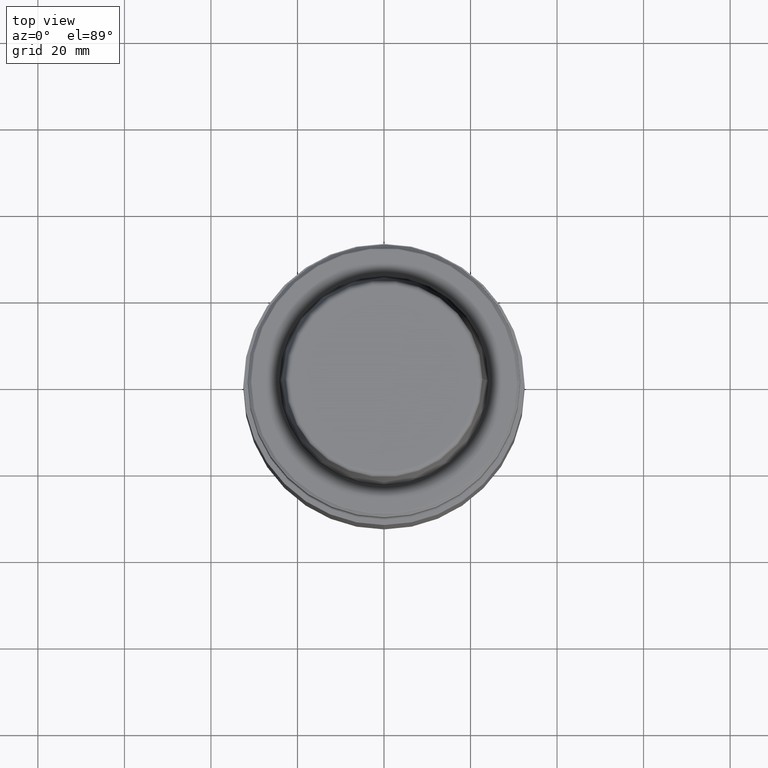
[diagram: clean part render]
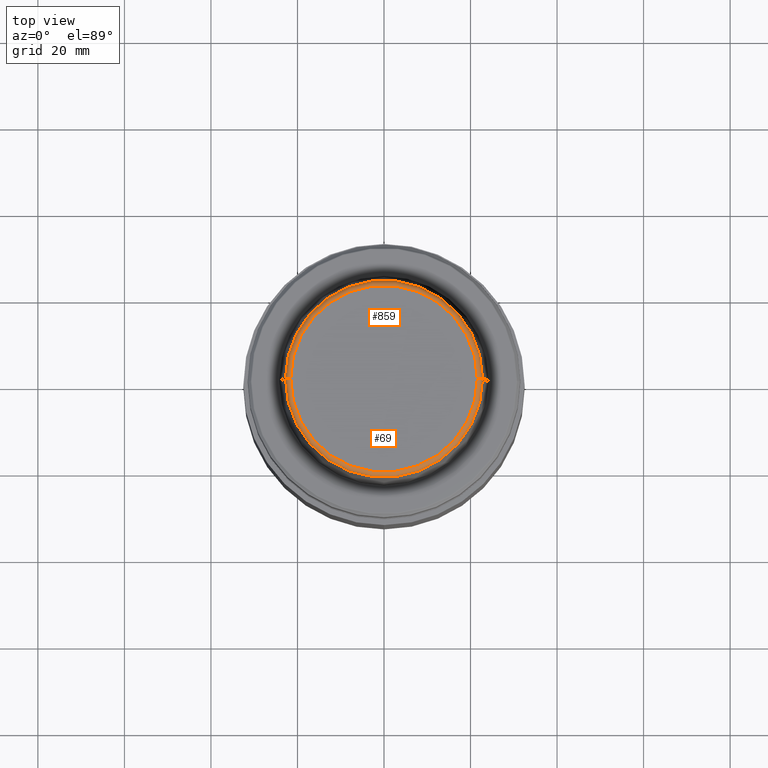
[diagram: same view with one multi-face feature highlighted, each face labeled with its STEP entity id]
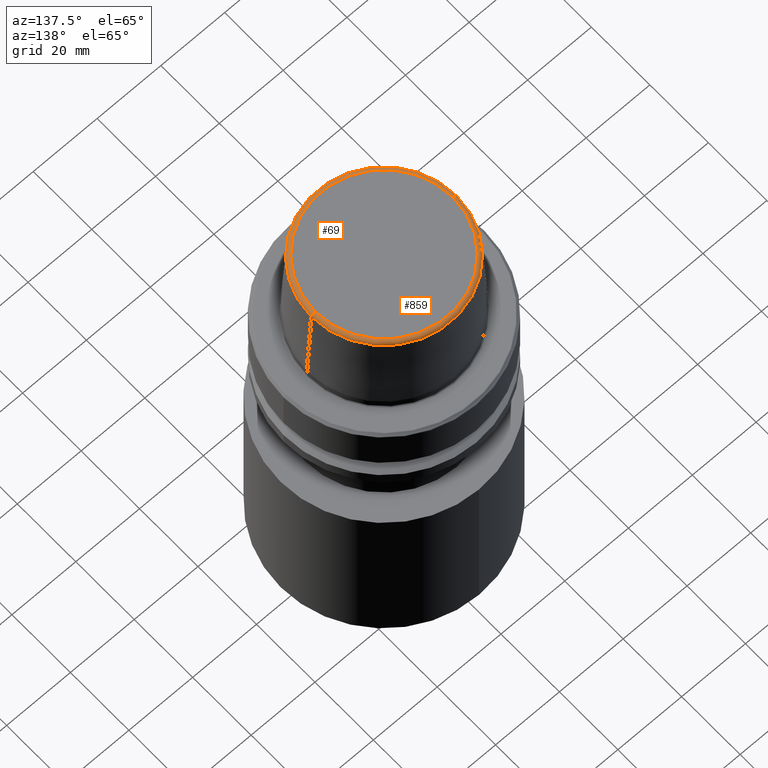
[diagram: same view with one multi-face feature highlighted, each face labeled with its STEP entity id]
A machine part, top view. The highlighted faces form ONE feature: a constant-radius fillet chain: 2 tangent blend faces with common blend radius 1.2 mm. The faces share edges in the B-rep.
A second angle (auxiliary view) of the same feature is appended — it is thin or edge-on in the first view.
Their STEP definitions:
[1] entity #859 (Torus):
#57 = EDGE_CURVE ( 'NONE', #240, #751, #1033, .T. ) ;
#62 = CIRCLE ( 'NONE', #756, 21.58108272732117100 ) ;
#81 = AXIS2_PLACEMENT_3D ( 'NONE', #918, #346, #1018 ) ;
#84 = CARTESIAN_POINT ( 'NONE',  ( -21.58108272732117100, 2.716307157494421400E-015, 31.89999999999999900 ) ) ;
#168 = ORIENTED_EDGE ( 'NONE', *, *, #1279, .T. ) ;
#192 = DIRECTION ( 'NONE',  ( -0.0000000000000000000, -0.0000000000000000000, 1.000000000000000000 ) ) ;
#230 = AXIS2_PLACEMENT_3D ( 'NONE', #305, #247, #365 ) ;
#240 = VERTEX_POINT ( 'NONE', #621 ) ;
#247 = DIRECTION ( 'NONE',  ( 0.0000000000000000000, -1.000000000000000000, 0.0000000000000000000 ) ) ;
#305 = CARTESIAN_POINT ( 'NONE',  ( 21.58108272732117100, 0.0000000000000000000, 30.69999999999999200 ) ) ;
#337 = VERTEX_POINT ( 'NONE', #692 ) ;
#346 = DIRECTION ( 'NONE',  ( -0.0000000000000000000, -0.0000000000000000000, 1.000000000000000000 ) ) ;
#350 = ORIENTED_EDGE ( 'NONE', *, *, #510, .F. ) ;
#363 = ORIENTED_EDGE ( 'NONE', *, *, #57, .F. ) ;
#365 = DIRECTION ( 'NONE',  ( 0.0000000000000000000, 0.0000000000000000000, -1.000000000000000000 ) ) ;
#424 = DIRECTION ( 'NONE',  ( -0.0000000000000000000, -0.0000000000000000000, 1.000000000000000000 ) ) ;
#430 = CIRCLE ( 'NONE', #81, 22.77957961851797500 ) ;
#473 = CARTESIAN_POINT ( 'NONE',  ( -21.58108272732117100, 2.642920388414810300E-015, 30.69999999999999200 ) ) ;
#489 = AXIS2_PLACEMENT_3D ( 'NONE', #473, #1159, #571 ) ;
#510 = EDGE_CURVE ( 'NONE', #751, #897, #62, .T. ) ;
#571 = DIRECTION ( 'NONE',  ( -1.000000000000000000, 1.224646799147353200E-016, 0.0000000000000000000 ) ) ;
#621 = CARTESIAN_POINT ( 'NONE',  ( 22.77957961851797500, 0.0000000000000000000, 30.76004333261571900 ) ) ;
#624 = CARTESIAN_POINT ( 'NONE',  ( 0.0000000000000000000, 0.0000000000000000000, 31.89999999999999900 ) ) ;
#671 = CARTESIAN_POINT ( 'NONE',  ( 0.0000000000000000000, 0.0000000000000000000, 30.69999999999999200 ) ) ;
#692 = CARTESIAN_POINT ( 'NONE',  ( -22.77957961851797500, 2.789693926574032200E-015, 30.76004333261571900 ) ) ;
#724 = CIRCLE ( 'NONE', #489, 1.200000000000003100 ) ;
#751 = VERTEX_POINT ( 'NONE', #842 ) ;
#756 = AXIS2_PLACEMENT_3D ( 'NONE', #624, #424, #809 ) ;
#809 = DIRECTION ( 'NONE',  ( 1.000000000000000000, 0.0000000000000000000, 0.0000000000000000000 ) ) ;
#824 = FACE_OUTER_BOUND ( 'NONE', #1158, .T. ) ;
#842 = CARTESIAN_POINT ( 'NONE',  ( 21.58108272732117100, 0.0000000000000000000, 31.89999999999999900 ) ) ;
#859 = ADVANCED_FACE ( 'NONE', ( #824 ), #1102, .T. ) ;
#867 = DIRECTION ( 'NONE',  ( 1.000000000000000000, 0.0000000000000000000, 0.0000000000000000000 ) ) ;
#884 = AXIS2_PLACEMENT_3D ( 'NONE', #671, #192, #867 ) ;
#897 = VERTEX_POINT ( 'NONE', #84 ) ;
#918 = CARTESIAN_POINT ( 'NONE',  ( 0.0000000000000000000, 0.0000000000000000000, 30.76004333261571900 ) ) ;
#1018 = DIRECTION ( 'NONE',  ( 1.000000000000000000, 0.0000000000000000000, 0.0000000000000000000 ) ) ;
#1033 = CIRCLE ( 'NONE', #230, 1.200000000000003100 ) ;
#1055 = ORIENTED_EDGE ( 'NONE', *, *, #1153, .T. ) ;
#1102 = TOROIDAL_SURFACE ( 'NONE', #884, 21.58108272732117100, 1.200000000000003100 ) ;
#1153 = EDGE_CURVE ( 'NONE', #240, #337, #430, .T. ) ;
#1158 = EDGE_LOOP ( 'NONE', ( #1055, #168, #350, #363 ) ) ;
#1159 = DIRECTION ( 'NONE',  ( 1.224646799147353200E-016, 1.000000000000000000, 0.0000000000000000000 ) ) ;
#1279 = EDGE_CURVE ( 'NONE', #337, #897, #724, .T. ) ;
[2] entity #69 (Torus):
#57 = EDGE_CURVE ( 'NONE', #240, #751, #1033, .T. ) ;
#69 = ADVANCED_FACE ( 'NONE', ( #456 ), #982, .T. ) ;
#84 = CARTESIAN_POINT ( 'NONE',  ( -21.58108272732117100, 2.716307157494421400E-015, 31.89999999999999900 ) ) ;
#124 = DIRECTION ( 'NONE',  ( -0.0000000000000000000, -0.0000000000000000000, 1.000000000000000000 ) ) ;
#153 = ORIENTED_EDGE ( 'NONE', *, *, #1279, .F. ) ;
#225 = DIRECTION ( 'NONE',  ( 1.000000000000000000, 0.0000000000000000000, 0.0000000000000000000 ) ) ;
#230 = AXIS2_PLACEMENT_3D ( 'NONE', #305, #247, #365 ) ;
#240 = VERTEX_POINT ( 'NONE', #621 ) ;
#247 = DIRECTION ( 'NONE',  ( 0.0000000000000000000, -1.000000000000000000, 0.0000000000000000000 ) ) ;
#305 = CARTESIAN_POINT ( 'NONE',  ( 21.58108272732117100, 0.0000000000000000000, 30.69999999999999200 ) ) ;
#337 = VERTEX_POINT ( 'NONE', #692 ) ;
#360 = CIRCLE ( 'NONE', #638, 22.77957961851797500 ) ;
#365 = DIRECTION ( 'NONE',  ( 0.0000000000000000000, 0.0000000000000000000, -1.000000000000000000 ) ) ;
#456 = FACE_OUTER_BOUND ( 'NONE', #568, .T. ) ;
#464 = ORIENTED_EDGE ( 'NONE', *, *, #57, .T. ) ;
#473 = CARTESIAN_POINT ( 'NONE',  ( -21.58108272732117100, 2.642920388414810300E-015, 30.69999999999999200 ) ) ;
#489 = AXIS2_PLACEMENT_3D ( 'NONE', #473, #1159, #571 ) ;
#499 = DIRECTION ( 'NONE',  ( -0.0000000000000000000, -0.0000000000000000000, 1.000000000000000000 ) ) ;
#563 = AXIS2_PLACEMENT_3D ( 'NONE', #1079, #499, #1182 ) ;
#568 = EDGE_LOOP ( 'NONE', ( #153, #1098, #464, #598 ) ) ;
#571 = DIRECTION ( 'NONE',  ( -1.000000000000000000, 1.224646799147353200E-016, 0.0000000000000000000 ) ) ;
#598 = ORIENTED_EDGE ( 'NONE', *, *, #916, .F. ) ;
#621 = CARTESIAN_POINT ( 'NONE',  ( 22.77957961851797500, 0.0000000000000000000, 30.76004333261571900 ) ) ;
#638 = AXIS2_PLACEMENT_3D ( 'NONE', #714, #124, #811 ) ;
#692 = CARTESIAN_POINT ( 'NONE',  ( -22.77957961851797500, 2.789693926574032200E-015, 30.76004333261571900 ) ) ;
#703 = CIRCLE ( 'NONE', #563, 21.58108272732117100 ) ;
#714 = CARTESIAN_POINT ( 'NONE',  ( 0.0000000000000000000, 0.0000000000000000000, 30.76004333261571900 ) ) ;
#724 = CIRCLE ( 'NONE', #489, 1.200000000000003100 ) ;
#751 = VERTEX_POINT ( 'NONE', #842 ) ;
#798 = AXIS2_PLACEMENT_3D ( 'NONE', #1048, #1204, #225 ) ;
#811 = DIRECTION ( 'NONE',  ( 1.000000000000000000, 0.0000000000000000000, 0.0000000000000000000 ) ) ;
#842 = CARTESIAN_POINT ( 'NONE',  ( 21.58108272732117100, 0.0000000000000000000, 31.89999999999999900 ) ) ;
#897 = VERTEX_POINT ( 'NONE', #84 ) ;
#916 = EDGE_CURVE ( 'NONE', #897, #751, #703, .T. ) ;
#982 = TOROIDAL_SURFACE ( 'NONE', #798, 21.58108272732117100, 1.200000000000003100 ) ;
#1033 = CIRCLE ( 'NONE', #230, 1.200000000000003100 ) ;
#1047 = EDGE_CURVE ( 'NONE', #337, #240, #360, .T. ) ;
#1048 = CARTESIAN_POINT ( 'NONE',  ( 0.0000000000000000000, 0.0000000000000000000, 30.69999999999999200 ) ) ;
#1079 = CARTESIAN_POINT ( 'NONE',  ( 0.0000000000000000000, 0.0000000000000000000, 31.89999999999999900 ) ) ;
#1098 = ORIENTED_EDGE ( 'NONE', *, *, #1047, .T. ) ;
#1159 = DIRECTION ( 'NONE',  ( 1.224646799147353200E-016, 1.000000000000000000, 0.0000000000000000000 ) ) ;
#1182 = DIRECTION ( 'NONE',  ( 1.000000000000000000, 0.0000000000000000000, 0.0000000000000000000 ) ) ;
#1204 = DIRECTION ( 'NONE',  ( -0.0000000000000000000, -0.0000000000000000000, 1.000000000000000000 ) ) ;
#1279 = EDGE_CURVE ( 'NONE', #337, #897, #724, .T. ) ;